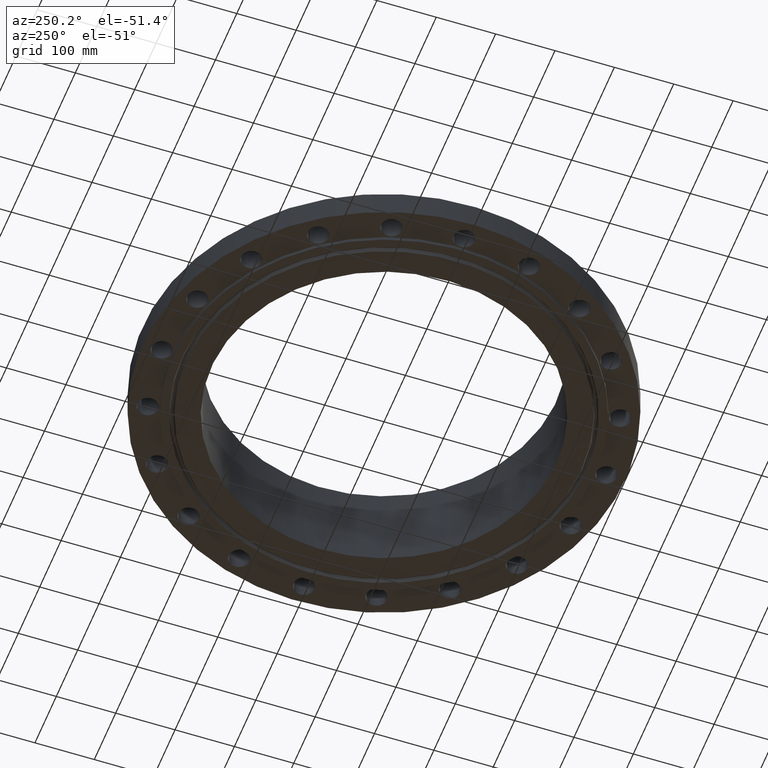
[diagram: clean part render]
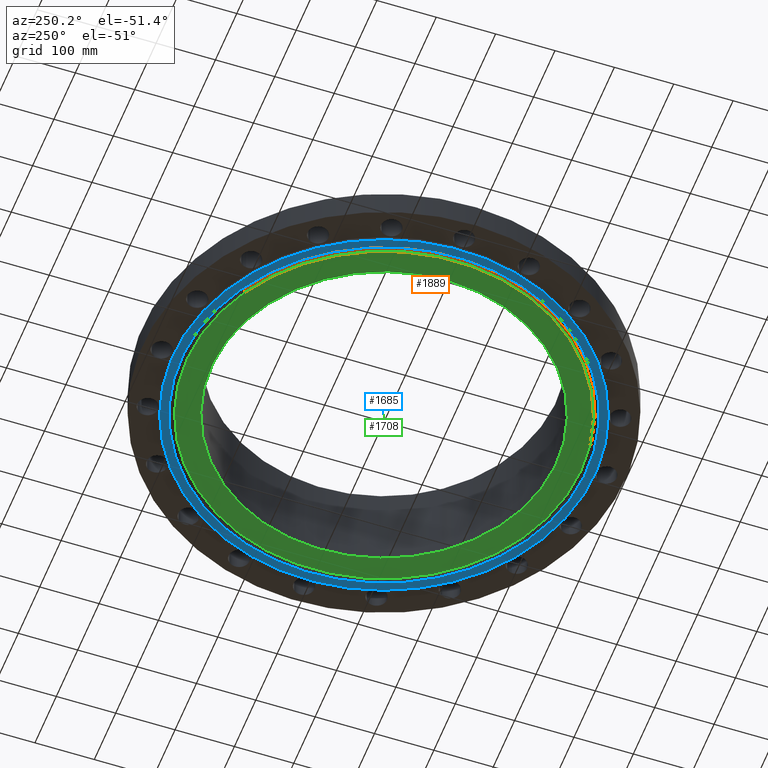
[diagram: same view with three faces highlighted in distinct colors, each labeled with its STEP entity id]
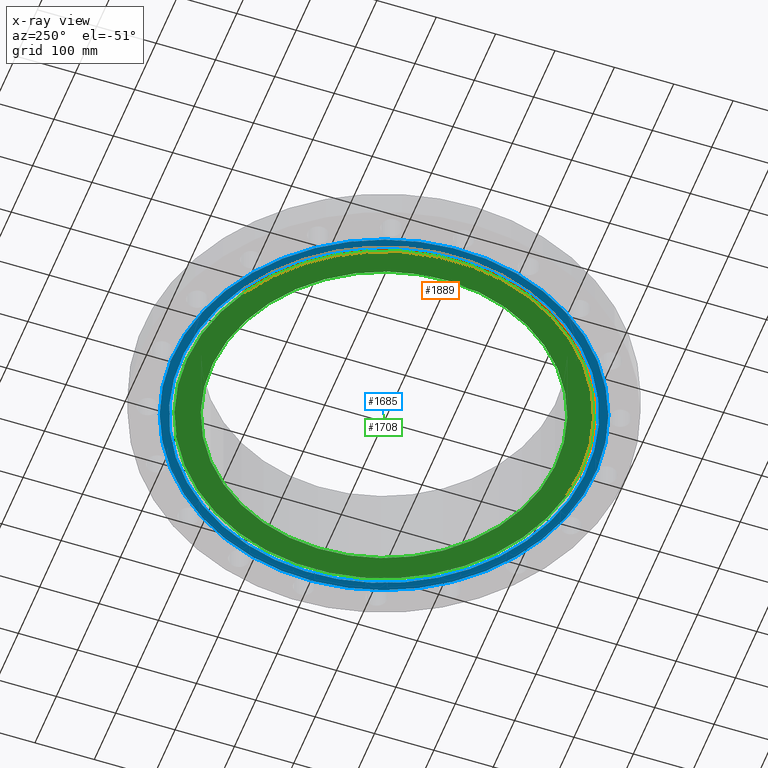
[diagram: x-ray of the same camera — body ghosted, the three highlighted faces saturated]
A machine part, auxiliary view with three faces highlighted in distinct colors.
The next image is the same camera in x-ray (body ghosted, the three faces saturated) — at least one of them is partly hidden behind the body in this view.
Their STEP definitions:

[orange] entity #1889 — the highlighted conical surface has half-angle 23 deg.
#1697=AXIS2_PLACEMENT_3D('Circle Axis2P3D',#1695,#1696,$) ;
#1851=AXIS2_PLACEMENT_3D('Circle Axis2P3D',#1849,#1850,$) ;
#1864=AXIS2_PLACEMENT_3D('Cone Axis2P3D',#1861,#1862,#1863) ;
#1690=CARTESIAN_POINT('Vertex',(-6.26998712208,11.4771344423,-0.250000000001)) ;
#1692=CARTESIAN_POINT('Vertex',(6.26998712208,-11.4771344423,-0.250000000001)) ;
#1695=CARTESIAN_POINT('Axis2P3D Location',(1.1189649382E-015,0.,-0.250000000001)) ;
#1827=CARTESIAN_POINT('Vertex',(6.31698849226,-11.5631698733,-0.0190396522348)) ;
#1834=CARTESIAN_POINT('Vertex',(-6.31698849226,11.5631698733,-0.0190396522348)) ;
#1849=CARTESIAN_POINT('Axis2P3D Location',(0.,0.,-0.0190396522348)) ;
#1861=CARTESIAN_POINT('Axis2P3D Location',(0.,0.,-0.310000000001)) ;
#1866=CARTESIAN_POINT('Line Origine',(-6.29348780717,11.5201521578,-0.134519826118)) ;
#1871=CARTESIAN_POINT('Line Origine',(6.29348780717,-11.5201521578,-0.134519826118)) ;
#1696=DIRECTION('Axis2P3D Direction',(0.,0.,-0.0393700787402)) ;
#1850=DIRECTION('Axis2P3D Direction',(0.,0.,0.0393700787402)) ;
#1862=DIRECTION('Axis2P3D Direction',(0.,0.,0.0393700787402)) ;
#1863=DIRECTION('Axis2P3D XDirection',(-0.0188750212049,0.0345504945626,0.)) ;
#1867=DIRECTION('Vector Direction',(-0.00737505833565,0.0134999537303,0.0362403485611)) ;
#1872=DIRECTION('Vector Direction',(0.00737505833565,-0.0134999537303,0.0362403485611)) ;
#1868=VECTOR('Line Direction',#1867,0.0393700787402) ;
#1873=VECTOR('Line Direction',#1872,0.0393700787402) ;
#1884=ORIENTED_EDGE('',*,*,#1875,.F.) ;
#1885=ORIENTED_EDGE('',*,*,#1853,.F.) ;
#1886=ORIENTED_EDGE('',*,*,#1870,.T.) ;
#1887=ORIENTED_EDGE('',*,*,#1699,.F.) ;
#1889=ADVANCED_FACE('PartBody',(#1888),#1865,.T.) ;
#1698=CIRCLE('generated circle',#1697,13.0781250001) ;
#1852=CIRCLE('generated circle',#1851,13.1761618512) ;
#1865=CONICAL_SURFACE('Cone',#1864,13.0526565111,0.401425727959) ;
#1699=EDGE_CURVE('',#1693,#1691,#1698,.T.) ;
#1853=EDGE_CURVE('',#1835,#1828,#1852,.T.) ;
#1870=EDGE_CURVE('',#1835,#1691,#1869,.F.) ;
#1875=EDGE_CURVE('',#1828,#1693,#1874,.F.) ;
#1883=EDGE_LOOP('',(#1884,#1885,#1886,#1887)) ;
#1888=FACE_OUTER_BOUND('',#1883,.T.) ;
#1869=LINE('Line',#1866,#1868) ;
#1874=LINE('Line',#1871,#1873) ;
#1691=VERTEX_POINT('',#1690) ;
#1693=VERTEX_POINT('',#1692) ;
#1828=VERTEX_POINT('',#1827) ;
#1835=VERTEX_POINT('',#1834) ;

[blue] entity #1685 — the highlighted planar face has unit normal (0, 0, -1).
#431=AXIS2_PLACEMENT_3D('Circle Axis2P3D',#429,#430,$) ;
#466=AXIS2_PLACEMENT_3D('Circle Axis2P3D',#464,#465,$) ;
#1661=AXIS2_PLACEMENT_3D('Plane Axis2P3D',#1658,#1659,#1660) ;
#1669=AXIS2_PLACEMENT_3D('Circle Axis2P3D',#1667,#1668,$) ;
#1678=AXIS2_PLACEMENT_3D('Circle Axis2P3D',#1676,#1677,$) ;
#429=CARTESIAN_POINT('Axis2P3D Location',(0.,0.,-0.250000000001)) ;
#433=CARTESIAN_POINT('Vertex',(-6.71195754049,-12.2861558665,-0.250000000001)) ;
#435=CARTESIAN_POINT('Vertex',(6.71195754049,12.2861558665,-0.250000000001)) ;
#464=CARTESIAN_POINT('Axis2P3D Location',(0.,0.,-0.250000000001)) ;
#1658=CARTESIAN_POINT('Axis2P3D Location',(0.,11.438,-0.250000000001)) ;
#1667=CARTESIAN_POINT('Axis2P3D Location',(1.67844740731E-015,2.23792987641E-015,-0.250000000001)) ;
#1671=CARTESIAN_POINT('Vertex',(6.43478965098,-11.7788034479,-0.250000000001)) ;
#1673=CARTESIAN_POINT('Vertex',(-6.43478965098,11.7788034479,-0.250000000001)) ;
#1676=CARTESIAN_POINT('Axis2P3D Location',(1.1189649382E-015,4.47585975282E-015,-0.250000000001)) ;
#430=DIRECTION('Axis2P3D Direction',(0.,0.,-0.0393700787402)) ;
#465=DIRECTION('Axis2P3D Direction',(0.,0.,-0.0393700787402)) ;
#1659=DIRECTION('Axis2P3D Direction',(0.,0.,-0.0393700787402)) ;
#1660=DIRECTION('Axis2P3D XDirection',(0.0393700787402,0.,0.)) ;
#1668=DIRECTION('Axis2P3D Direction',(0.,0.,-0.0393700787402)) ;
#1677=DIRECTION('Axis2P3D Direction',(0.,0.,-0.0393700787402)) ;
#1664=ORIENTED_EDGE('',*,*,#437,.T.) ;
#1665=ORIENTED_EDGE('',*,*,#468,.T.) ;
#1682=ORIENTED_EDGE('',*,*,#1675,.F.) ;
#1683=ORIENTED_EDGE('',*,*,#1680,.F.) ;
#1684=FACE_BOUND('',#1681,.T.) ;
#1685=ADVANCED_FACE('PartBody',(#1666,#1684),#1662,.T.) ;
#432=CIRCLE('generated circle',#431,14.0000000001) ;
#467=CIRCLE('generated circle',#466,14.0000000001) ;
#1670=CIRCLE('generated circle',#1669,13.4218750001) ;
#1679=CIRCLE('generated circle',#1678,13.4218750001) ;
#437=EDGE_CURVE('',#434,#436,#432,.T.) ;
#468=EDGE_CURVE('',#436,#434,#467,.T.) ;
#1675=EDGE_CURVE('',#1672,#1674,#1670,.T.) ;
#1680=EDGE_CURVE('',#1674,#1672,#1679,.T.) ;
#1663=EDGE_LOOP('',(#1664,#1665)) ;
#1681=EDGE_LOOP('',(#1682,#1683)) ;
#1666=FACE_OUTER_BOUND('',#1663,.T.) ;
#1662=PLANE('',#1661) ;
#434=VERTEX_POINT('',#433) ;
#436=VERTEX_POINT('',#435) ;
#1672=VERTEX_POINT('',#1671) ;
#1674=VERTEX_POINT('',#1673) ;

[green] entity #1708 — the highlighted planar face has unit normal (0, 0, -1).
#363=AXIS2_PLACEMENT_3D('Circle Axis2P3D',#361,#362,$) ;
#387=AXIS2_PLACEMENT_3D('Circle Axis2P3D',#385,#386,$) ;
#1661=AXIS2_PLACEMENT_3D('Plane Axis2P3D',#1658,#1659,#1660) ;
#1688=AXIS2_PLACEMENT_3D('Circle Axis2P3D',#1686,#1687,$) ;
#1697=AXIS2_PLACEMENT_3D('Circle Axis2P3D',#1695,#1696,$) ;
#358=CARTESIAN_POINT('Vertex',(5.48366931058,10.0377893429,-0.250000000001)) ;
#361=CARTESIAN_POINT('Axis2P3D Location',(0.,0.,-0.250000000001)) ;
#365=CARTESIAN_POINT('Vertex',(-5.48366931058,-10.0377893429,-0.250000000001)) ;
#385=CARTESIAN_POINT('Axis2P3D Location',(0.,0.,-0.250000000001)) ;
#1658=CARTESIAN_POINT('Axis2P3D Location',(0.,11.438,-0.250000000001)) ;
#1686=CARTESIAN_POINT('Axis2P3D Location',(-1.1189649382E-015,2.23792987641E-015,-0.250000000001)) ;
#1690=CARTESIAN_POINT('Vertex',(-6.26998712208,11.4771344423,-0.250000000001)) ;
#1692=CARTESIAN_POINT('Vertex',(6.26998712208,-11.4771344423,-0.250000000001)) ;
#1695=CARTESIAN_POINT('Axis2P3D Location',(1.1189649382E-015,0.,-0.250000000001)) ;
#362=DIRECTION('Axis2P3D Direction',(0.,0.,-0.0393700787402)) ;
#386=DIRECTION('Axis2P3D Direction',(0.,0.,-0.0393700787402)) ;
#1659=DIRECTION('Axis2P3D Direction',(0.,0.,-0.0393700787402)) ;
#1660=DIRECTION('Axis2P3D XDirection',(0.0393700787402,0.,0.)) ;
#1687=DIRECTION('Axis2P3D Direction',(0.,0.,-0.0393700787402)) ;
#1696=DIRECTION('Axis2P3D Direction',(0.,0.,-0.0393700787402)) ;
#1701=ORIENTED_EDGE('',*,*,#1694,.T.) ;
#1702=ORIENTED_EDGE('',*,*,#1699,.T.) ;
#1705=ORIENTED_EDGE('',*,*,#367,.F.) ;
#1706=ORIENTED_EDGE('',*,*,#389,.F.) ;
#1707=FACE_BOUND('',#1704,.T.) ;
#1708=ADVANCED_FACE('PartBody',(#1703,#1707),#1662,.T.) ;
#364=CIRCLE('generated circle',#363,11.438) ;
#388=CIRCLE('generated circle',#387,11.438) ;
#1689=CIRCLE('generated circle',#1688,13.0781250001) ;
#1698=CIRCLE('generated circle',#1697,13.0781250001) ;
#367=EDGE_CURVE('',#359,#366,#364,.T.) ;
#389=EDGE_CURVE('',#366,#359,#388,.T.) ;
#1694=EDGE_CURVE('',#1691,#1693,#1689,.T.) ;
#1699=EDGE_CURVE('',#1693,#1691,#1698,.T.) ;
#1700=EDGE_LOOP('',(#1701,#1702)) ;
#1704=EDGE_LOOP('',(#1705,#1706)) ;
#1703=FACE_OUTER_BOUND('',#1700,.T.) ;
#1662=PLANE('',#1661) ;
#359=VERTEX_POINT('',#358) ;
#366=VERTEX_POINT('',#365) ;
#1691=VERTEX_POINT('',#1690) ;
#1693=VERTEX_POINT('',#1692) ;